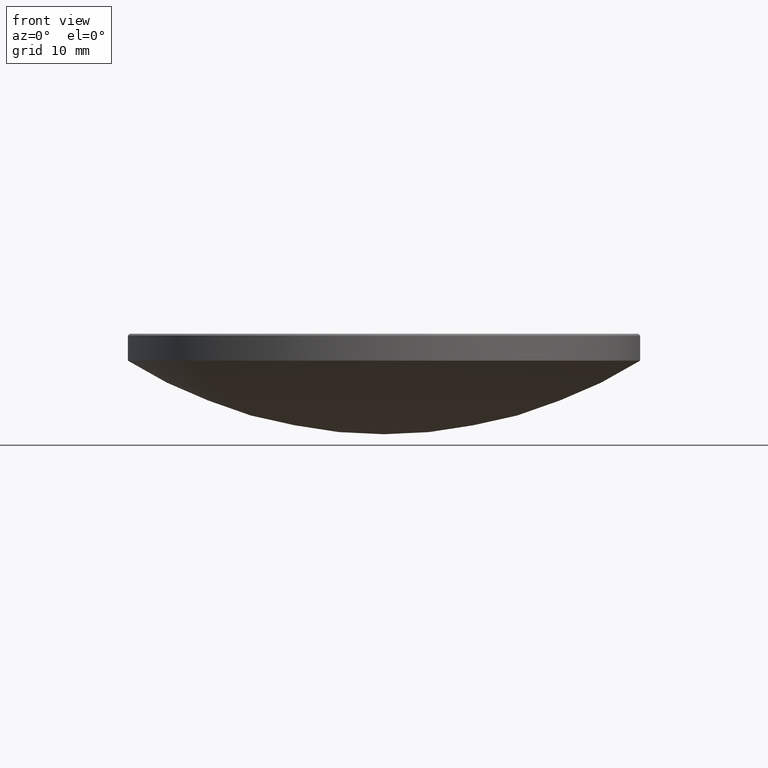
[diagram: clean part render]
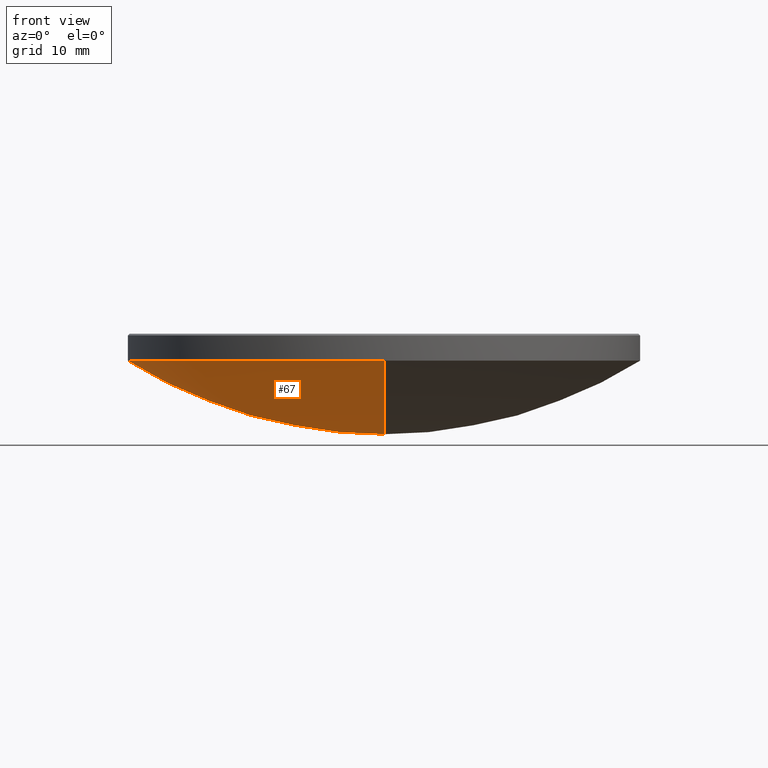
[diagram: same view with one face highlighted and labeled with its STEP entity id]
A machine part, front view. The second image highlights one B-rep face of the part: STEP entity #67.
In plain terms, the highlighted spherical surface has radius 47.87 mm.
Its self-contained STEP definition (entity closure, byte-faithful):
#10 = CIRCLE ( 'NONE', #173, 25.39999999999999503 ) ;
#21 = CIRCLE ( 'NONE', #86, 47.86999999999999744 ) ;
#25 = EDGE_CURVE ( 'NONE', #104, #279, #136, .T. ) ;
#45 = EDGE_CURVE ( 'NONE', #54, #104, #10, .T. ) ;
#51 = EDGE_CURVE ( 'NONE', #247, #54, #21, .T. ) ;
#54 = VERTEX_POINT ( 'NONE', #189 ) ;
#61 = DIRECTION ( 'NONE',  ( 0.000000000000000000, 1.000000000000000000, 0.000000000000000000 ) ) ;
#66 = ORIENTED_EDGE ( 'NONE', *, *, #51, .F. ) ;
#67 = ADVANCED_FACE ( 'NONE', ( #165 ), #255, .T. ) ;
#74 = DIRECTION ( 'NONE',  ( -0.000000000000000000, -0.000000000000000000, 1.000000000000000000 ) ) ;
#81 = EDGE_CURVE ( 'NONE', #247, #279, #237, .T. ) ;
#82 = DIRECTION ( 'NONE',  ( 0.000000000000000000, 0.000000000000000000, -1.000000000000000000 ) ) ;
#86 = AXIS2_PLACEMENT_3D ( 'NONE', #278, #99, #82 ) ;
#92 = CARTESIAN_POINT ( 'NONE',  ( 0.000000000000000000, 2.931192113759189857E-15, 5.705570236288731500 ) ) ;
#95 = ORIENTED_EDGE ( 'NONE', *, *, #81, .T. ) ;
#99 = DIRECTION ( 'NONE',  ( 1.000000000000000000, -0.000000000000000000, 0.000000000000000000 ) ) ;
#104 = VERTEX_POINT ( 'NONE', #213 ) ;
#107 = AXIS2_PLACEMENT_3D ( 'NONE', #187, #74, #208 ) ;
#121 = CARTESIAN_POINT ( 'NONE',  ( -3.110602869834276865E-15, -25.39999999999999858, 12.99999999999999822 ) ) ;
#122 = DIRECTION ( 'NONE',  ( 1.000000000000000000, 0.000000000000000000, 0.000000000000000000 ) ) ;
#136 = CIRCLE ( 'NONE', #107, 25.39999999999999503 ) ;
#152 = CARTESIAN_POINT ( 'NONE',  ( 0.000000000000000000, 0.000000000000000000, 13.00000000000000000 ) ) ;
#165 = FACE_OUTER_BOUND ( 'NONE', #273, .T. ) ;
#168 = DIRECTION ( 'NONE',  ( -0.000000000000000000, -0.000000000000000000, 1.000000000000000000 ) ) ;
#170 = DIRECTION ( 'NONE',  ( -1.000000000000000000, 0.000000000000000000, 0.000000000000000000 ) ) ;
#173 = AXIS2_PLACEMENT_3D ( 'NONE', #152, #168, #122 ) ;
#187 = CARTESIAN_POINT ( 'NONE',  ( 0.000000000000000000, 0.000000000000000000, 13.00000000000000000 ) ) ;
#189 = CARTESIAN_POINT ( 'NONE',  ( 0.000000000000000000, 25.39999999999999858, 12.99999999999999822 ) ) ;
#190 = AXIS2_PLACEMENT_3D ( 'NONE', #275, #170, #61 ) ;
#207 = ORIENTED_EDGE ( 'NONE', *, *, #25, .F. ) ;
#208 = DIRECTION ( 'NONE',  ( 1.000000000000000000, 0.000000000000000000, 0.000000000000000000 ) ) ;
#210 = DIRECTION ( 'NONE',  ( -1.000000000000000000, 1.224646799147353207E-16, 0.000000000000000000 ) ) ;
#213 = CARTESIAN_POINT ( 'NONE',  ( -25.39999999999999503, 0.000000000000000000, 13.00000000000000000 ) ) ;
#229 = CARTESIAN_POINT ( 'NONE',  ( 0.000000000000000000, 0.000000000000000000, 53.57557023628872628 ) ) ;
#237 = CIRCLE ( 'NONE', #264, 47.86999999999999744 ) ;
#244 = ORIENTED_EDGE ( 'NONE', *, *, #45, .F. ) ;
#247 = VERTEX_POINT ( 'NONE', #92 ) ;
#255 = SPHERICAL_SURFACE ( 'NONE', #190, 47.86999999999999744 ) ;
#259 = DIRECTION ( 'NONE',  ( -1.224646799147353207E-16, -1.000000000000000000, 0.000000000000000000 ) ) ;
#264 = AXIS2_PLACEMENT_3D ( 'NONE', #229, #210, #259 ) ;
#273 = EDGE_LOOP ( 'NONE', ( #66, #95, #207, #244 ) ) ;
#275 = CARTESIAN_POINT ( 'NONE',  ( 0.000000000000000000, 0.000000000000000000, 53.57557023628872628 ) ) ;
#278 = CARTESIAN_POINT ( 'NONE',  ( 0.000000000000000000, 0.000000000000000000, 53.57557023628872628 ) ) ;
#279 = VERTEX_POINT ( 'NONE', #121 ) ;